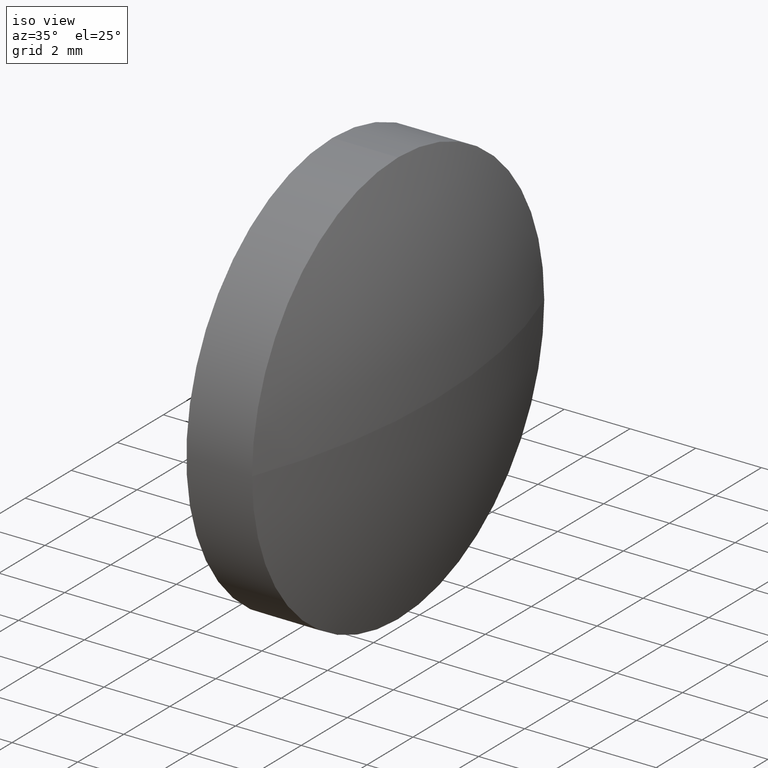
[diagram: clean part render]
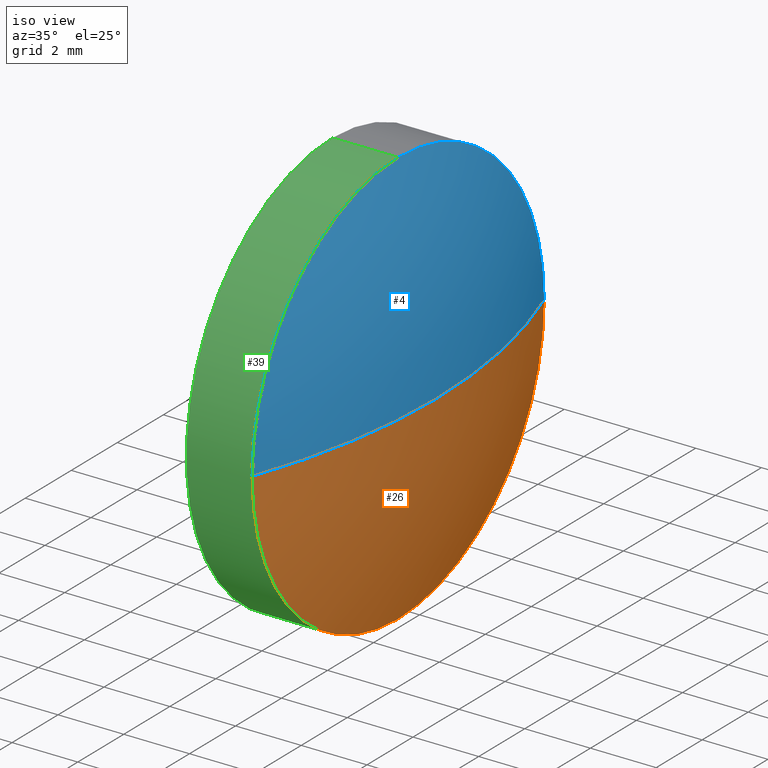
[diagram: same view with three faces highlighted in distinct colors, each labeled with its STEP entity id]
A machine part, iso view with three faces highlighted in distinct colors.
Their STEP definitions:

[orange] entity #26 — the highlighted spherical surface has radius 18.2553 mm.
#1 = EDGE_CURVE ( 'NONE', #84, #67, #161, .T. ) ;
#13 = CIRCLE ( 'NONE', #66, 6.350000000000000500 ) ;
#16 = SPHERICAL_SURFACE ( 'NONE', #120, 18.25530701754391700 ) ;
#26 = ADVANCED_FACE ( 'NONE', ( #53 ), #16, .T. ) ;
#29 = DIRECTION ( 'NONE',  ( -1.000000000000000000, -0.0000000000000000000, -0.0000000000000000000 ) ) ;
#30 = CARTESIAN_POINT ( 'NONE',  ( 455.1822824048600800, -0.9922208549258272300, 0.0000000000000000000 ) ) ;
#34 = AXIS2_PLACEMENT_3D ( 'NONE', #170, #29, #94 ) ;
#36 = CARTESIAN_POINT ( 'NONE',  ( 436.9269753873161900, -0.9922208549258261200, 0.0000000000000000000 ) ) ;
#41 = CARTESIAN_POINT ( 'NONE',  ( 436.9269753873161900, -0.9922208549258261200, 0.0000000000000000000 ) ) ;
#45 = DIRECTION ( 'NONE',  ( -1.000000000000000000, -0.0000000000000000000, -0.0000000000000000000 ) ) ;
#47 = AXIS2_PLACEMENT_3D ( 'NONE', #129, #132, #167 ) ;
#48 = ORIENTED_EDGE ( 'NONE', *, *, #149, .T. ) ;
#52 = CIRCLE ( 'NONE', #47, 18.25530701754391000 ) ;
#53 = FACE_OUTER_BOUND ( 'NONE', #123, .T. ) ;
#66 = AXIS2_PLACEMENT_3D ( 'NONE', #155, #45, #112 ) ;
#67 = VERTEX_POINT ( 'NONE', #93 ) ;
#71 = ORIENTED_EDGE ( 'NONE', *, *, #1, .F. ) ;
#75 = DIRECTION ( 'NONE',  ( 0.0000000000000000000, -1.224646799147353200E-016, 1.000000000000000000 ) ) ;
#84 = VERTEX_POINT ( 'NONE', #30 ) ;
#93 = CARTESIAN_POINT ( 'NONE',  ( 454.0422824048600900, 5.357779145074143700, 7.776507174585654700E-016 ) ) ;
#94 = DIRECTION ( 'NONE',  ( 0.0000000000000000000, 0.0000000000000000000, 1.000000000000000000 ) ) ;
#96 = EDGE_CURVE ( 'NONE', #67, #171, #13, .T. ) ;
#104 = AXIS2_PLACEMENT_3D ( 'NONE', #41, #75, #177 ) ;
#107 = DIRECTION ( 'NONE',  ( 0.0000000000000000000, 0.0000000000000000000, 1.000000000000000000 ) ) ;
#112 = DIRECTION ( 'NONE',  ( 0.0000000000000000000, 0.0000000000000000000, 1.000000000000000000 ) ) ;
#119 = ORIENTED_EDGE ( 'NONE', *, *, #96, .F. ) ;
#120 = AXIS2_PLACEMENT_3D ( 'NONE', #36, #107, #138 ) ;
#123 = EDGE_LOOP ( 'NONE', ( #71, #48, #134, #119 ) ) ;
#129 = CARTESIAN_POINT ( 'NONE',  ( 436.9269753873161900, -0.9922208549258261200, 0.0000000000000000000 ) ) ;
#132 = DIRECTION ( 'NONE',  ( 0.0000000000000000000, 0.0000000000000000000, -1.000000000000000000 ) ) ;
#134 = ORIENTED_EDGE ( 'NONE', *, *, #145, .F. ) ;
#137 = VERTEX_POINT ( 'NONE', #172 ) ;
#138 = DIRECTION ( 'NONE',  ( 0.0000000000000000000, -1.000000000000000000, 0.0000000000000000000 ) ) ;
#142 = CIRCLE ( 'NONE', #34, 6.350000000000000500 ) ;
#144 = CARTESIAN_POINT ( 'NONE',  ( 454.0422824048600900, -0.9922208549258463300, -6.350000000000000500 ) ) ;
#145 = EDGE_CURVE ( 'NONE', #171, #137, #142, .T. ) ;
#149 = EDGE_CURVE ( 'NONE', #84, #137, #52, .T. ) ;
#155 = CARTESIAN_POINT ( 'NONE',  ( 454.0422824048600900, -0.9922208549258472200, 0.0000000000000000000 ) ) ;
#161 = CIRCLE ( 'NONE', #104, 18.25530701754391700 ) ;
#167 = DIRECTION ( 'NONE',  ( -1.000000000000000000, 0.0000000000000000000, 0.0000000000000000000 ) ) ;
#170 = CARTESIAN_POINT ( 'NONE',  ( 454.0422824048600900, -0.9922208549258472200, 0.0000000000000000000 ) ) ;
#171 = VERTEX_POINT ( 'NONE', #144 ) ;
#172 = CARTESIAN_POINT ( 'NONE',  ( 454.0422824048600900, -7.342220854925817400, 0.0000000000000000000 ) ) ;
#177 = DIRECTION ( 'NONE',  ( 0.0000000000000000000, -1.000000000000000000, -1.224646799147353200E-016 ) ) ;

[blue] entity #4 — the highlighted spherical surface has radius 18.2553 mm.
#1 = EDGE_CURVE ( 'NONE', #84, #67, #161, .T. ) ;
#4 = ADVANCED_FACE ( 'NONE', ( #51 ), #126, .T. ) ;
#6 = CARTESIAN_POINT ( 'NONE',  ( 454.0422824048600900, -0.9922208549258472200, 0.0000000000000000000 ) ) ;
#12 = EDGE_LOOP ( 'NONE', ( #72, #87, #154, #21 ) ) ;
#20 = CARTESIAN_POINT ( 'NONE',  ( 436.9269753873161900, -0.9922208549258261200, 0.0000000000000000000 ) ) ;
#21 = ORIENTED_EDGE ( 'NONE', *, *, #86, .F. ) ;
#23 = AXIS2_PLACEMENT_3D ( 'NONE', #127, #156, #76 ) ;
#30 = CARTESIAN_POINT ( 'NONE',  ( 455.1822824048600800, -0.9922208549258272300, 0.0000000000000000000 ) ) ;
#41 = CARTESIAN_POINT ( 'NONE',  ( 436.9269753873161900, -0.9922208549258261200, 0.0000000000000000000 ) ) ;
#42 = CARTESIAN_POINT ( 'NONE',  ( 454.0422824048600900, -0.9922208549258472200, 6.350000000000000500 ) ) ;
#46 = CIRCLE ( 'NONE', #23, 6.350000000000000500 ) ;
#47 = AXIS2_PLACEMENT_3D ( 'NONE', #129, #132, #167 ) ;
#51 = FACE_OUTER_BOUND ( 'NONE', #12, .T. ) ;
#52 = CIRCLE ( 'NONE', #47, 18.25530701754391000 ) ;
#67 = VERTEX_POINT ( 'NONE', #93 ) ;
#68 = DIRECTION ( 'NONE',  ( -1.000000000000000000, -0.0000000000000000000, -0.0000000000000000000 ) ) ;
#72 = ORIENTED_EDGE ( 'NONE', *, *, #149, .F. ) ;
#75 = DIRECTION ( 'NONE',  ( 0.0000000000000000000, -1.224646799147353200E-016, 1.000000000000000000 ) ) ;
#76 = DIRECTION ( 'NONE',  ( 0.0000000000000000000, 0.0000000000000000000, 1.000000000000000000 ) ) ;
#84 = VERTEX_POINT ( 'NONE', #30 ) ;
#86 = EDGE_CURVE ( 'NONE', #137, #160, #114, .T. ) ;
#87 = ORIENTED_EDGE ( 'NONE', *, *, #1, .T. ) ;
#92 = DIRECTION ( 'NONE',  ( 0.0000000000000000000, -1.000000000000000000, 0.0000000000000000000 ) ) ;
#93 = CARTESIAN_POINT ( 'NONE',  ( 454.0422824048600900, 5.357779145074143700, 7.776507174585654700E-016 ) ) ;
#95 = DIRECTION ( 'NONE',  ( 0.0000000000000000000, 0.0000000000000000000, 1.000000000000000000 ) ) ;
#104 = AXIS2_PLACEMENT_3D ( 'NONE', #41, #75, #177 ) ;
#108 = DIRECTION ( 'NONE',  ( 0.0000000000000000000, 0.0000000000000000000, 1.000000000000000000 ) ) ;
#114 = CIRCLE ( 'NONE', #186, 6.350000000000000500 ) ;
#126 = SPHERICAL_SURFACE ( 'NONE', #135, 18.25530701754391700 ) ;
#127 = CARTESIAN_POINT ( 'NONE',  ( 454.0422824048600900, -0.9922208549258472200, 0.0000000000000000000 ) ) ;
#129 = CARTESIAN_POINT ( 'NONE',  ( 436.9269753873161900, -0.9922208549258261200, 0.0000000000000000000 ) ) ;
#130 = EDGE_CURVE ( 'NONE', #160, #67, #46, .T. ) ;
#132 = DIRECTION ( 'NONE',  ( 0.0000000000000000000, 0.0000000000000000000, -1.000000000000000000 ) ) ;
#135 = AXIS2_PLACEMENT_3D ( 'NONE', #20, #108, #92 ) ;
#137 = VERTEX_POINT ( 'NONE', #172 ) ;
#149 = EDGE_CURVE ( 'NONE', #84, #137, #52, .T. ) ;
#154 = ORIENTED_EDGE ( 'NONE', *, *, #130, .F. ) ;
#156 = DIRECTION ( 'NONE',  ( -1.000000000000000000, -0.0000000000000000000, -0.0000000000000000000 ) ) ;
#160 = VERTEX_POINT ( 'NONE', #42 ) ;
#161 = CIRCLE ( 'NONE', #104, 18.25530701754391700 ) ;
#167 = DIRECTION ( 'NONE',  ( -1.000000000000000000, 0.0000000000000000000, 0.0000000000000000000 ) ) ;
#172 = CARTESIAN_POINT ( 'NONE',  ( 454.0422824048600900, -7.342220854925817400, 0.0000000000000000000 ) ) ;
#177 = DIRECTION ( 'NONE',  ( 0.0000000000000000000, -1.000000000000000000, -1.224646799147353200E-016 ) ) ;
#186 = AXIS2_PLACEMENT_3D ( 'NONE', #6, #68, #95 ) ;

[green] entity #39 — the highlighted cylindrical surface (partial cylindrical patch) has radius 6.35 mm, axis along (-1, -0, -0).
#3 = CARTESIAN_POINT ( 'NONE',  ( 449.7142539148659900, -0.9922208549258472200, 0.0000000000000000000 ) ) ;
#5 = CARTESIAN_POINT ( 'NONE',  ( 452.0422824048600900, -0.9922208549258472200, 0.0000000000000000000 ) ) ;
#6 = CARTESIAN_POINT ( 'NONE',  ( 454.0422824048600900, -0.9922208549258472200, 0.0000000000000000000 ) ) ;
#10 = AXIS2_PLACEMENT_3D ( 'NONE', #5, #139, #28 ) ;
#18 = ORIENTED_EDGE ( 'NONE', *, *, #145, .T. ) ;
#22 = DIRECTION ( 'NONE',  ( 0.0000000000000000000, 0.0000000000000000000, 1.000000000000000000 ) ) ;
#25 = ORIENTED_EDGE ( 'NONE', *, *, #103, .T. ) ;
#28 = DIRECTION ( 'NONE',  ( 0.0000000000000000000, 0.0000000000000000000, 1.000000000000000000 ) ) ;
#29 = DIRECTION ( 'NONE',  ( -1.000000000000000000, -0.0000000000000000000, -0.0000000000000000000 ) ) ;
#31 = CIRCLE ( 'NONE', #10, 6.350000000000000500 ) ;
#34 = AXIS2_PLACEMENT_3D ( 'NONE', #170, #29, #94 ) ;
#39 = ADVANCED_FACE ( 'NONE', ( #157 ), #133, .T. ) ;
#40 = VERTEX_POINT ( 'NONE', #109 ) ;
#42 = CARTESIAN_POINT ( 'NONE',  ( 454.0422824048600900, -0.9922208549258472200, 6.350000000000000500 ) ) ;
#43 = ORIENTED_EDGE ( 'NONE', *, *, #69, .F. ) ;
#50 = VECTOR ( 'NONE', #150, 1000.000000000000000 ) ;
#56 = ORIENTED_EDGE ( 'NONE', *, *, #86, .T. ) ;
#63 = EDGE_LOOP ( 'NONE', ( #43, #18, #56, #25, #78 ) ) ;
#65 = VECTOR ( 'NONE', #143, 1000.000000000000000 ) ;
#68 = DIRECTION ( 'NONE',  ( -1.000000000000000000, -0.0000000000000000000, -0.0000000000000000000 ) ) ;
#69 = EDGE_CURVE ( 'NONE', #171, #40, #88, .T. ) ;
#78 = ORIENTED_EDGE ( 'NONE', *, *, #125, .F. ) ;
#82 = LINE ( 'NONE', #166, #50 ) ;
#86 = EDGE_CURVE ( 'NONE', #137, #160, #114, .T. ) ;
#88 = LINE ( 'NONE', #165, #65 ) ;
#94 = DIRECTION ( 'NONE',  ( 0.0000000000000000000, 0.0000000000000000000, 1.000000000000000000 ) ) ;
#95 = DIRECTION ( 'NONE',  ( 0.0000000000000000000, 0.0000000000000000000, 1.000000000000000000 ) ) ;
#103 = EDGE_CURVE ( 'NONE', #160, #178, #82, .T. ) ;
#106 = DIRECTION ( 'NONE',  ( -1.000000000000000000, -0.0000000000000000000, -0.0000000000000000000 ) ) ;
#109 = CARTESIAN_POINT ( 'NONE',  ( 452.0422824048600900, -0.9922208549258463300, -6.350000000000000500 ) ) ;
#114 = CIRCLE ( 'NONE', #186, 6.350000000000000500 ) ;
#117 = AXIS2_PLACEMENT_3D ( 'NONE', #3, #106, #22 ) ;
#125 = EDGE_CURVE ( 'NONE', #40, #178, #31, .T. ) ;
#133 = CYLINDRICAL_SURFACE ( 'NONE', #117, 6.350000000000000500 ) ;
#137 = VERTEX_POINT ( 'NONE', #172 ) ;
#139 = DIRECTION ( 'NONE',  ( -1.000000000000000000, -0.0000000000000000000, -0.0000000000000000000 ) ) ;
#141 = CARTESIAN_POINT ( 'NONE',  ( 452.0422824048600900, -0.9922208549258472200, 6.350000000000000500 ) ) ;
#142 = CIRCLE ( 'NONE', #34, 6.350000000000000500 ) ;
#143 = DIRECTION ( 'NONE',  ( -1.000000000000000000, -0.0000000000000000000, -0.0000000000000000000 ) ) ;
#144 = CARTESIAN_POINT ( 'NONE',  ( 454.0422824048600900, -0.9922208549258463300, -6.350000000000000500 ) ) ;
#145 = EDGE_CURVE ( 'NONE', #171, #137, #142, .T. ) ;
#150 = DIRECTION ( 'NONE',  ( -1.000000000000000000, -0.0000000000000000000, -0.0000000000000000000 ) ) ;
#157 = FACE_OUTER_BOUND ( 'NONE', #63, .T. ) ;
#160 = VERTEX_POINT ( 'NONE', #42 ) ;
#165 = CARTESIAN_POINT ( 'NONE',  ( 449.7142539148659900, -0.9922208549258463300, -6.350000000000000500 ) ) ;
#166 = CARTESIAN_POINT ( 'NONE',  ( 449.7142539148659900, -0.9922208549258472200, 6.350000000000000500 ) ) ;
#170 = CARTESIAN_POINT ( 'NONE',  ( 454.0422824048600900, -0.9922208549258472200, 0.0000000000000000000 ) ) ;
#171 = VERTEX_POINT ( 'NONE', #144 ) ;
#172 = CARTESIAN_POINT ( 'NONE',  ( 454.0422824048600900, -7.342220854925817400, 0.0000000000000000000 ) ) ;
#178 = VERTEX_POINT ( 'NONE', #141 ) ;
#186 = AXIS2_PLACEMENT_3D ( 'NONE', #6, #68, #95 ) ;